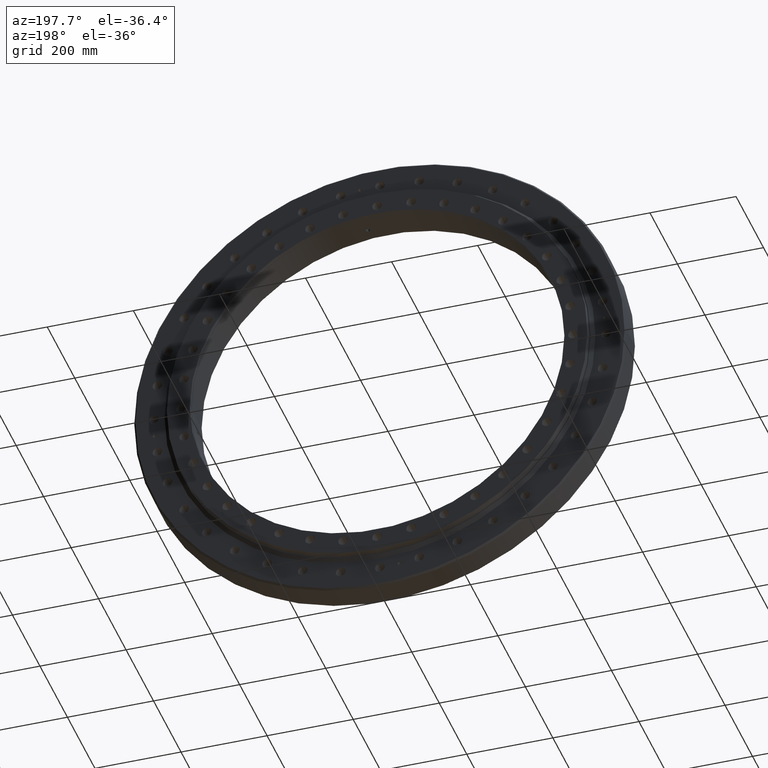
[diagram: clean part render]
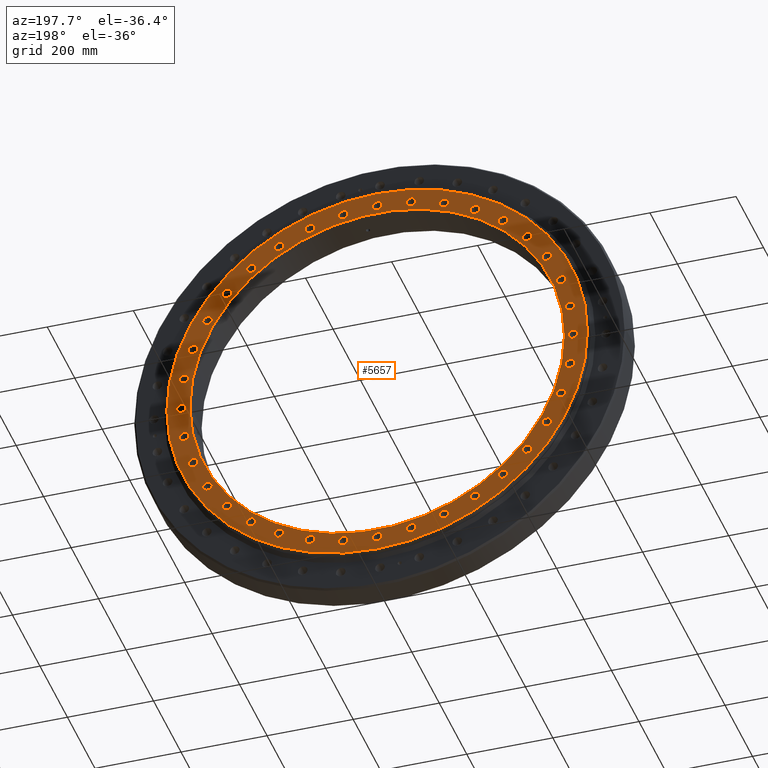
[diagram: same view with one face highlighted and labeled with its STEP entity id]
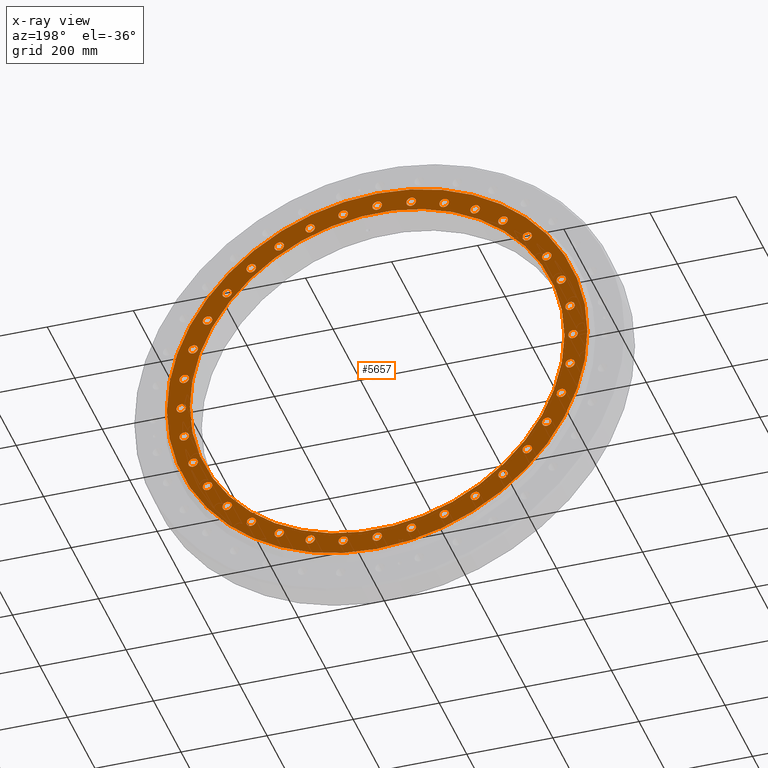
[diagram: x-ray of the same camera — body ghosted, the highlighted face saturated]
A machine part, auxiliary view. The second image highlights one B-rep face of the part: STEP entity #5657.
The next image is the same camera in x-ray: the body ghosted, the highlighted face saturated — about 0% of this face is hidden behind the body in this view.
In plain terms, the highlighted planar face has unit normal (-0, -1, 0).
Its self-contained STEP definition (entity closure, byte-faithful):
#5 = ORIENTED_EDGE ( 'NONE', *, *, #5527, .T. ) ;
#17 = ORIENTED_EDGE ( 'NONE', *, *, #8540, .F. ) ;
#21 = DIRECTION ( 'NONE',  ( -0.1736481776669404900, 0.0000000000000000000, 0.9848077530122062400 ) ) ;
#41 = ORIENTED_EDGE ( 'NONE', *, *, #8654, .F. ) ;
#47 = CIRCLE ( 'NONE', #3770, 11.00000000000001100 ) ;
#79 = CARTESIAN_POINT ( 'NONE',  ( 337.5502216191367800, 52.49999999999997200, 292.4683624073732100 ) ) ;
#80 = CARTESIAN_POINT ( 'NONE',  ( 427.5601424575894500, 52.49999999999997200, 155.6191652131762700 ) ) ;
#87 = DIRECTION ( 'NONE',  ( 2.727064569436389700E-017, 1.000000000000000000, -3.081487911019577400E-033 ) ) ;
#98 = VERTEX_POINT ( 'NONE', #1193 ) ;
#109 = VERTEX_POINT ( 'NONE', #79 ) ;
#112 = DIRECTION ( 'NONE',  ( 0.9848077530122092400, 0.0000000000000000000, -0.1736481776669237300 ) ) ;
#147 = CIRCLE ( 'NONE', #3570, 11.00000000000002700 ) ;
#151 = DIRECTION ( 'NONE',  ( 2.727064569436390300E-017, 1.000000000000000000, -7.703719777548943400E-034 ) ) ;
#156 = EDGE_LOOP ( 'NONE', ( #2122, #3385 ) ) ;
#157 = DIRECTION ( 'NONE',  ( 2.727064569436389400E-017, 1.000000000000000000, 3.081487911019577400E-033 ) ) ;
#163 = CARTESIAN_POINT ( 'NONE',  ( -155.6191652131777800, 52.49999999999998600, 427.5601424575888800 ) ) ;
#174 = VERTEX_POINT ( 'NONE', #7964 ) ;
#175 = CARTESIAN_POINT ( 'NONE',  ( 303.4683624073720700, 52.49999999999997200, -348.5502216191378000 ) ) ;
#200 = CARTESIAN_POINT ( 'NONE',  ( -448.0875276205546200, 52.49999999999999300, 79.00992083845385100 ) ) ;
#201 = AXIS2_PLACEMENT_3D ( 'NONE', #8439, #8329, #6838 ) ;
#216 = CARTESIAN_POINT ( 'NONE',  ( -383.0415587219192200, 52.49999999999999300, 227.5000000000006500 ) ) ;
#219 = DIRECTION ( 'NONE',  ( -1.047444401652938900E-014, 0.0000000000000000000, 1.000000000000000000 ) ) ;
#244 = CARTESIAN_POINT ( 'NONE',  ( 448.0875276205540000, 52.49999999999996400, -79.00992083845696400 ) ) ;
#265 = ORIENTED_EDGE ( 'NONE', *, *, #367, .F. ) ;
#279 = DIRECTION ( 'NONE',  ( 0.8660254037844417100, 0.0000000000000000000, -0.4999999999999947300 ) ) ;
#289 = DIRECTION ( 'NONE',  ( 2.727064569436390000E-017, 1.000000000000000000, -1.540743955509788700E-033 ) ) ;
#301 = CIRCLE ( 'NONE', #7605, 11.00000000000000200 ) ;
#312 = CARTESIAN_POINT ( 'NONE',  ( -4.988015702831472700E-012, 52.49999999999997900, -455.0000000000000000 ) ) ;
#317 = FACE_BOUND ( 'NONE', #7526, .T. ) ;
#323 = VERTEX_POINT ( 'NONE', #2176 ) ;
#339 = CIRCLE ( 'NONE', #6914, 10.99999999999997200 ) ;
#344 = CARTESIAN_POINT ( 'NONE',  ( 438.5601424575894500, 52.49999999999997200, 155.6191652131762700 ) ) ;
#346 = CIRCLE ( 'NONE', #6115, 10.99999999999997900 ) ;
#356 = CIRCLE ( 'NONE', #7090, 11.00000000000002500 ) ;
#367 = EDGE_CURVE ( 'NONE', #5009, #323, #1983, .T. ) ;
#374 = CARTESIAN_POINT ( 'NONE',  ( -166.6191652131843700, 52.49999999999998600, -427.5601424575864900 ) ) ;
#379 = ORIENTED_EDGE ( 'NONE', *, *, #4393, .F. ) ;
#388 = CARTESIAN_POINT ( 'NONE',  ( -394.0415587219225700, 52.49999999999999300, -227.4999999999947700 ) ) ;
#396 = VERTEX_POINT ( 'NONE', #3319 ) ;
#398 = CARTESIAN_POINT ( 'NONE',  ( -437.0875276205546200, 52.49999999999999300, 79.00992083845385100 ) ) ;
#400 = AXIS2_PLACEMENT_3D ( 'NONE', #4468, #4450, #3644 ) ;
#405 = ORIENTED_EDGE ( 'NONE', *, *, #965, .F. ) ;
#410 = ORIENTED_EDGE ( 'NONE', *, *, #3208, .F. ) ;
#416 = DIRECTION ( 'NONE',  ( -0.7660444431189855600, 0.0000000000000000000, 0.6427876096865305900 ) ) ;
#424 = VERTEX_POINT ( 'NONE', #398 ) ;
#437 = EDGE_CURVE ( 'NONE', #1171, #8035, #6865, .T. ) ;
#451 = DIRECTION ( 'NONE',  ( 2.727064569436390300E-017, 1.000000000000000000, -6.162975822039154700E-033 ) ) ;
#459 = ORIENTED_EDGE ( 'NONE', *, *, #2965, .F. ) ;
#462 = CARTESIAN_POINT ( 'NONE',  ( 1.813631102282129000E-012, 52.49999999999997900, 455.0000000000000000 ) ) ;
#470 = ORIENTED_EDGE ( 'NONE', *, *, #500, .F. ) ;
#474 = FACE_BOUND ( 'NONE', #8755, .T. ) ;
#476 = CIRCLE ( 'NONE', #525, 11.00000000000001100 ) ;
#500 = EDGE_CURVE ( 'NONE', #5567, #4987, #2735, .T. ) ;
#525 = AXIS2_PLACEMENT_3D ( 'NONE', #3967, #4111, #1746 ) ;
#533 = CARTESIAN_POINT ( 'NONE',  ( 394.0415587219176200, 52.49999999999997200, -227.5000000000033800 ) ) ;
#542 = DIRECTION ( 'NONE',  ( 2.727064569436390000E-017, 1.000000000000000000, 0.0000000000000000000 ) ) ;
#562 = EDGE_LOOP ( 'NONE', ( #6043, #5802 ) ) ;
#610 = EDGE_CURVE ( 'NONE', #109, #8579, #6314, .T. ) ;
#634 = EDGE_LOOP ( 'NONE', ( #2789, #5 ) ) ;
#637 = CARTESIAN_POINT ( 'NONE',  ( -427.5601424575880900, 52.49999999999999300, 155.6191652131801100 ) ) ;
#644 = DIRECTION ( 'NONE',  ( 2.727064569436389100E-017, 1.000000000000000000, -3.081487911019577400E-033 ) ) ;
#662 = DIRECTION ( 'NONE',  ( 2.727064569436388400E-017, 1.000000000000000000, 9.244463733058732100E-033 ) ) ;
#679 = AXIS2_PLACEMENT_3D ( 'NONE', #878, #3140, #1851 ) ;
#680 = FACE_BOUND ( 'NONE', #8349, .T. ) ;
#695 = AXIS2_PLACEMENT_3D ( 'NONE', #1209, #1966, #4359 ) ;
#696 = DIRECTION ( 'NONE',  ( 0.6427876096865413600, 0.0000000000000000000, -0.7660444431189762400 ) ) ;
#747 = CIRCLE ( 'NONE', #3342, 11.00000000000001100 ) ;
#759 = VERTEX_POINT ( 'NONE', #6528 ) ;
#791 = EDGE_CURVE ( 'NONE', #4987, #5567, #6483, .T. ) ;
#803 = AXIS2_PLACEMENT_3D ( 'NONE', #2775, #5286, #2096 ) ;
#813 = CARTESIAN_POINT ( 'NONE',  ( 238.4999999999961900, 52.49999999999997200, -394.0415587219218900 ) ) ;
#837 = DIRECTION ( 'NONE',  ( 2.727064569436389400E-017, 1.000000000000000000, 0.0000000000000000000 ) ) ;
#878 = CARTESIAN_POINT ( 'NONE',  ( -79.00992083845844100, 52.49999999999998600, -448.0875276205537700 ) ) ;
#886 = ORIENTED_EDGE ( 'NONE', *, *, #5869, .F. ) ;
#917 = DIRECTION ( 'NONE',  ( 2.727064569436390300E-017, 1.000000000000000000, -6.162975822039154700E-033 ) ) ;
#922 = EDGE_CURVE ( 'NONE', #4575, #1556, #47, .T. ) ;
#924 = VERTEX_POINT ( 'NONE', #1524 ) ;
#928 = DIRECTION ( 'NONE',  ( -0.7660444431189855600, 0.0000000000000000000, 0.6427876096865305900 ) ) ;
#938 = CARTESIAN_POINT ( 'NONE',  ( 90.00992083844849400, 52.49999999999997900, -448.0875276205555900 ) ) ;
#943 = DIRECTION ( 'NONE',  ( 0.7660444431189716900, 0.0000000000000000000, 0.6427876096865469100 ) ) ;
#944 = ORIENTED_EDGE ( 'NONE', *, *, #4508, .F. ) ;
#959 = DIRECTION ( 'NONE',  ( 2.727064569436390300E-017, 1.000000000000000000, 0.0000000000000000000 ) ) ;
#964 = CARTESIAN_POINT ( 'NONE',  ( -155.6191652131843700, 52.49999999999998600, -427.5601424575864900 ) ) ;
#965 = EDGE_CURVE ( 'NONE', #1556, #4575, #6813, .T. ) ;
#969 = CARTESIAN_POINT ( 'NONE',  ( 348.5502216191367800, 52.49999999999997200, 292.4683624073732100 ) ) ;
#977 = EDGE_CURVE ( 'NONE', #924, #8545, #1401, .T. ) ;
#987 = CARTESIAN_POINT ( 'NONE',  ( -348.5502216191343900, 52.49999999999999300, 292.4683624073762800 ) ) ;
#989 = AXIS2_PLACEMENT_3D ( 'NONE', #312, #157, #3686 ) ;
#999 = AXIS2_PLACEMENT_3D ( 'NONE', #637, #3450, #1221 ) ;
#1003 = DIRECTION ( 'NONE',  ( -0.8660254037844382600, 0.0000000000000000000, -0.5000000000000007800 ) ) ;
#1005 = DIRECTION ( 'NONE',  ( -0.9848077530122103500, 0.0000000000000000000, 0.1736481776669176200 ) ) ;
#1026 = VERTEX_POINT ( 'NONE', #374 ) ;
#1028 = VERTEX_POINT ( 'NONE', #3204 ) ;
#1034 = VERTEX_POINT ( 'NONE', #6000 ) ;
#1037 = CARTESIAN_POINT ( 'NONE',  ( -90.00992083845142100, 52.49999999999998600, 448.0875276205550200 ) ) ;
#1046 = FACE_BOUND ( 'NONE', #3110, .T. ) ;
#1050 = CARTESIAN_POINT ( 'NONE',  ( -438.5601424575881400, 52.49999999999999300, 155.6191652131801100 ) ) ;
#1051 = ORIENTED_EDGE ( 'NONE', *, *, #3626, .F. ) ;
#1070 = DIRECTION ( 'NONE',  ( 2.727064569436389700E-017, 1.000000000000000000, 3.081487911019577400E-033 ) ) ;
#1073 = EDGE_CURVE ( 'NONE', #6445, #3034, #147, .T. ) ;
#1123 = CARTESIAN_POINT ( 'NONE',  ( -383.0415587219225700, 52.49999999999999300, -227.4999999999947700 ) ) ;
#1129 = EDGE_CURVE ( 'NONE', #323, #5009, #6996, .T. ) ;
#1140 = CARTESIAN_POINT ( 'NONE',  ( 466.0000000000000000, 52.49999999999996400, -3.399476291077739000E-012 ) ) ;
#1152 = EDGE_CURVE ( 'NONE', #2077, #6987, #747, .T. ) ;
#1171 = VERTEX_POINT ( 'NONE', #4874 ) ;
#1172 = CARTESIAN_POINT ( 'NONE',  ( -394.0415587219225700, 52.49999999999999300, -227.4999999999947700 ) ) ;
#1180 = DIRECTION ( 'NONE',  ( 2.727064569436389700E-017, 1.000000000000000000, 1.540743955509788700E-033 ) ) ;
#1181 = DIRECTION ( 'NONE',  ( -0.8660254037844382600, 0.0000000000000000000, -0.5000000000000007800 ) ) ;
#1188 = CARTESIAN_POINT ( 'NONE',  ( -427.5601424575880900, 52.49999999999999300, 155.6191652131801100 ) ) ;
#1193 = CARTESIAN_POINT ( 'NONE',  ( -416.5601424575880900, 52.49999999999999300, 155.6191652131801100 ) ) ;
#1198 = CIRCLE ( 'NONE', #2822, 10.99999999999997200 ) ;
#1209 = CARTESIAN_POINT ( 'NONE',  ( 427.5601424575871800, 52.49999999999997200, -155.6191652131829200 ) ) ;
#1216 = CARTESIAN_POINT ( 'NONE',  ( 68.00992083844850800, 52.49999999999997900, -448.0875276205555900 ) ) ;
#1221 = DIRECTION ( 'NONE',  ( -0.9396926207859125400, 0.0000000000000000000, 0.3420201433256571100 ) ) ;
#1258 = VERTEX_POINT ( 'NONE', #4048 ) ;
#1263 = CARTESIAN_POINT ( 'NONE',  ( 144.6191652131815600, 52.49999999999997900, 427.5601424575875200 ) ) ;
#1264 = VERTEX_POINT ( 'NONE', #4162 ) ;
#1265 = CARTESIAN_POINT ( 'NONE',  ( 444.0000000000000000, 52.49999999999996400, -3.400823402556801100E-012 ) ) ;
#1312 = AXIS2_PLACEMENT_3D ( 'NONE', #4598, #4597, #4574 ) ;
#1321 = CIRCLE ( 'NONE', #400, 11.00000000000000000 ) ;
#1323 = CARTESIAN_POINT ( 'NONE',  ( 155.6191652131748800, 52.49999999999997900, -427.5601424575899600 ) ) ;
#1326 = DIRECTION ( 'NONE',  ( 2.727064569436389700E-017, 1.000000000000000000, -3.081487911019577400E-033 ) ) ;
#1328 = EDGE_LOOP ( 'NONE', ( #7804, #3054 ) ) ;
#1335 = ORIENTED_EDGE ( 'NONE', *, *, #1152, .F. ) ;
#1358 = DIRECTION ( 'NONE',  ( -1.047444401652938900E-014, 0.0000000000000000000, 1.000000000000000000 ) ) ;
#1367 = DIRECTION ( 'NONE',  ( 0.4999999999999928900, 0.0000000000000000000, 0.8660254037844428200 ) ) ;
#1374 = AXIS2_PLACEMENT_3D ( 'NONE', #2847, #3011, #1367 ) ;
#1375 = CARTESIAN_POINT ( 'NONE',  ( 238.5000000000020500, 52.49999999999997200, 394.0415587219184200 ) ) ;
#1377 = AXIS2_PLACEMENT_3D ( 'NONE', #4391, #2600, #2591 ) ;
#1401 = CIRCLE ( 'NONE', #3685, 10.99999999999998600 ) ;
#1408 = CARTESIAN_POINT ( 'NONE',  ( 1.813631102282129000E-012, 52.49999999999997900, 455.0000000000000000 ) ) ;
#1418 = DIRECTION ( 'NONE',  ( 2.727064569436389700E-017, 1.000000000000000000, 0.0000000000000000000 ) ) ;
#1451 = DIRECTION ( 'NONE',  ( 1.000000000000000000, -3.190296047773438100E-017, 0.0000000000000000000 ) ) ;
#1460 = ORIENTED_EDGE ( 'NONE', *, *, #2140, .F. ) ;
#1483 = VERTEX_POINT ( 'NONE', #4817 ) ;
#1486 = CARTESIAN_POINT ( 'NONE',  ( -79.00992083845143600, 52.49999999999998600, 448.0875276205550200 ) ) ;
#1520 = AXIS2_PLACEMENT_3D ( 'NONE', #6287, #6225, #6177 ) ;
#1524 = CARTESIAN_POINT ( 'NONE',  ( 416.5601424575894500, 52.49999999999997200, 155.6191652131762700 ) ) ;
#1536 = AXIS2_PLACEMENT_3D ( 'NONE', #964, #1927, #1984 ) ;
#1543 = DIRECTION ( 'NONE',  ( 2.727064569436389400E-017, 1.000000000000000000, 3.081487911019577400E-033 ) ) ;
#1549 = VERTEX_POINT ( 'NONE', #4903 ) ;
#1556 = VERTEX_POINT ( 'NONE', #2390 ) ;
#1557 = AXIS2_PLACEMENT_3D ( 'NONE', #6486, #6472, #6462 ) ;
#1588 = CARTESIAN_POINT ( 'NONE',  ( -448.0875276205558200, 52.49999999999999300, -79.00992083844700200 ) ) ;
#1600 = EDGE_CURVE ( 'NONE', #2948, #7555, #2265, .T. ) ;
#1614 = VERTEX_POINT ( 'NONE', #6313 ) ;
#1656 = CARTESIAN_POINT ( 'NONE',  ( 348.5502216191322900, 52.49999999999997200, -292.4683624073786600 ) ) ;
#1672 = CARTESIAN_POINT ( 'NONE',  ( -292.4683624073798600, 52.49999999999998600, -348.5502216191313800 ) ) ;
#1683 = CIRCLE ( 'NONE', #8298, 11.00000000000000900 ) ;
#1723 = CIRCLE ( 'NONE', #4674, 11.00000000000000900 ) ;
#1732 = EDGE_CURVE ( 'NONE', #6238, #3281, #4143, .T. ) ;
#1739 = CARTESIAN_POINT ( 'NONE',  ( -435.0000000000000600, 52.49999999999999300, 0.0000000000000000000 ) ) ;
#1746 = DIRECTION ( 'NONE',  ( 1.000000000000000000, 0.0000000000000000000, 6.982962677686258800E-015 ) ) ;
#1819 = AXIS2_PLACEMENT_3D ( 'NONE', #3244, #3214, #4560 ) ;
#1834 = CARTESIAN_POINT ( 'NONE',  ( 79.00992083845540000, 52.49999999999997900, 448.0875276205543400 ) ) ;
#1845 = CARTESIAN_POINT ( 'NONE',  ( 427.5601424575894500, 52.49999999999997200, 155.6191652131762700 ) ) ;
#1851 = DIRECTION ( 'NONE',  ( -0.1736481776669273900, 0.0000000000000000000, -0.9848077530122085800 ) ) ;
#1875 = ORIENTED_EDGE ( 'NONE', *, *, #8536, .F. ) ;
#1878 = DIRECTION ( 'NONE',  ( 2.727064569436389400E-017, 1.000000000000000000, -3.081487911019577400E-033 ) ) ;
#1886 = DIRECTION ( 'NONE',  ( -0.5000000000000105500, 0.0000000000000000000, 0.8660254037844326000 ) ) ;
#1905 = CARTESIAN_POINT ( 'NONE',  ( 292.4683624073720700, 52.49999999999997200, -348.5502216191378000 ) ) ;
#1908 = EDGE_LOOP ( 'NONE', ( #7110, #5986 ) ) ;
#1927 = DIRECTION ( 'NONE',  ( 2.727064569436389400E-017, 1.000000000000000000, 3.081487911019577400E-033 ) ) ;
#1931 = DIRECTION ( 'NONE',  ( 2.727064569436389400E-017, 1.000000000000000000, 3.081487911019577400E-033 ) ) ;
#1943 = DIRECTION ( 'NONE',  ( 0.6427876096865413600, 0.0000000000000000000, -0.7660444431189762400 ) ) ;
#1953 = DIRECTION ( 'NONE',  ( 2.727064569436389700E-017, 1.000000000000000000, 0.0000000000000000000 ) ) ;
#1957 = CARTESIAN_POINT ( 'NONE',  ( 155.6191652131748800, 52.49999999999997900, -427.5601424575899600 ) ) ;
#1966 = DIRECTION ( 'NONE',  ( 2.727064569436388400E-017, 1.000000000000000000, 1.540743955509788700E-033 ) ) ;
#1967 = FACE_BOUND ( 'NONE', #8347, .T. ) ;
#1983 = CIRCLE ( 'NONE', #4655, 10.99999999999998000 ) ;
#1984 = DIRECTION ( 'NONE',  ( -0.3420201433256654400, 0.0000000000000000000, -0.9396926207859095400 ) ) ;
#1995 = EDGE_CURVE ( 'NONE', #7841, #8257, #4704, .T. ) ;
#2029 = ORIENTED_EDGE ( 'NONE', *, *, #7761, .F. ) ;
#2058 = ORIENTED_EDGE ( 'NONE', *, *, #2977, .F. ) ;
#2067 = AXIS2_PLACEMENT_3D ( 'NONE', #969, #959, #943 ) ;
#2077 = VERTEX_POINT ( 'NONE', #7238 ) ;
#2080 = AXIS2_PLACEMENT_3D ( 'NONE', #388, #2635, #1003 ) ;
#2092 = AXIS2_PLACEMENT_3D ( 'NONE', #1845, #1418, #2871 ) ;
#2096 = DIRECTION ( 'NONE',  ( -0.9396926207859079800, 0.0000000000000000000, -0.3420201433256698800 ) ) ;
#2102 = EDGE_CURVE ( 'NONE', #2879, #8260, #4794, .T. ) ;
#2106 = AXIS2_PLACEMENT_3D ( 'NONE', #1323, #2339, #8026 ) ;
#2122 = ORIENTED_EDGE ( 'NONE', *, *, #2209, .F. ) ;
#2132 = EDGE_CURVE ( 'NONE', #3914, #4263, #4905, .T. ) ;
#2135 = AXIS2_PLACEMENT_3D ( 'NONE', #8048, #2438, #2793 ) ;
#2139 = DIRECTION ( 'NONE',  ( 2.727064569436389700E-017, 1.000000000000000000, -1.540743955509788700E-033 ) ) ;
#2140 = EDGE_CURVE ( 'NONE', #8545, #924, #4947, .T. ) ;
#2146 = EDGE_CURVE ( 'NONE', #8943, #3857, #4952, .T. ) ;
#2148 = CARTESIAN_POINT ( 'NONE',  ( 292.4683624073774700, 52.49999999999997200, 348.5502216191333100 ) ) ;
#2159 = EDGE_CURVE ( 'NONE', #8579, #109, #5070, .T. ) ;
#2160 = DIRECTION ( 'NONE',  ( 2.727064569436390300E-017, 1.000000000000000000, 6.162975822039154700E-033 ) ) ;
#2169 = DIRECTION ( 'NONE',  ( 0.1736481776669212800, 0.0000000000000000000, 0.9848077530122096900 ) ) ;
#2176 = CARTESIAN_POINT ( 'NONE',  ( 166.6191652131815600, 52.49999999999997900, 427.5601424575875200 ) ) ;
#2209 = EDGE_CURVE ( 'NONE', #5924, #3752, #5159, .T. ) ;
#2217 = CIRCLE ( 'NONE', #803, 11.00000000000001800 ) ;
#2219 = CARTESIAN_POINT ( 'NONE',  ( -337.5502216191388800, 52.49999999999999300, -292.4683624073708800 ) ) ;
#2225 = ORIENTED_EDGE ( 'NONE', *, *, #4932, .T. ) ;
#2233 = CARTESIAN_POINT ( 'NONE',  ( 437.0875276205540000, 52.49999999999996400, -79.00992083845696400 ) ) ;
#2247 = FACE_BOUND ( 'NONE', #7554, .T. ) ;
#2265 = CIRCLE ( 'NONE', #2664, 11.00000000000000200 ) ;
#2269 = AXIS2_PLACEMENT_3D ( 'NONE', #8719, #8725, #7273 ) ;
#2274 = DIRECTION ( 'NONE',  ( 2.727064569436389700E-017, 1.000000000000000000, 7.703719777548943400E-034 ) ) ;
#2314 = DIRECTION ( 'NONE',  ( 0.9848077530122066900, 0.0000000000000000000, 0.1736481776669380500 ) ) ;
#2336 = CARTESIAN_POINT ( 'NONE',  ( 281.4683624073774100, 52.49999999999997200, 348.5502216191333100 ) ) ;
#2339 = DIRECTION ( 'NONE',  ( 2.727064569436389100E-017, 1.000000000000000000, 3.081487911019577400E-033 ) ) ;
#2351 = CARTESIAN_POINT ( 'NONE',  ( -348.5502216191343900, 52.49999999999999300, 292.4683624073762800 ) ) ;
#2354 = CARTESIAN_POINT ( 'NONE',  ( 448.0875276205553600, 52.49999999999996400, 79.00992083845008600 ) ) ;
#2362 = CARTESIAN_POINT ( 'NONE',  ( -303.4683624073798600, 52.49999999999998600, -348.5502216191313800 ) ) ;
#2366 = CARTESIAN_POINT ( 'NONE',  ( -337.5502216191343900, 52.49999999999999300, 292.4683624073762800 ) ) ;
#2390 = CARTESIAN_POINT ( 'NONE',  ( -10.99999999999818800, 52.49999999999997900, 455.0000000000000000 ) ) ;
#2430 = AXIS2_PLACEMENT_3D ( 'NONE', #6321, #662, #8384 ) ;
#2438 = DIRECTION ( 'NONE',  ( 2.727064569436389700E-017, 1.000000000000000000, 1.540743955509788700E-033 ) ) ;
#2447 = ORIENTED_EDGE ( 'NONE', *, *, #4277, .F. ) ;
#2451 = FACE_BOUND ( 'NONE', #7886, .T. ) ;
#2481 = VERTEX_POINT ( 'NONE', #6909 ) ;
#2491 = EDGE_CURVE ( 'NONE', #8758, #4205, #5699, .T. ) ;
#2510 = AXIS2_PLACEMENT_3D ( 'NONE', #2915, #2830, #2840 ) ;
#2522 = EDGE_CURVE ( 'NONE', #7875, #8674, #5952, .T. ) ;
#2534 = AXIS2_PLACEMENT_3D ( 'NONE', #7416, #7440, #7381 ) ;
#2591 = DIRECTION ( 'NONE',  ( 0.9848077530122066900, 0.0000000000000000000, 0.1736481776669380500 ) ) ;
#2600 = DIRECTION ( 'NONE',  ( 2.727064569436388100E-017, 1.000000000000000000, -1.540743955509788700E-033 ) ) ;
#2606 = DIRECTION ( 'NONE',  ( 0.6427876096865329200, 0.0000000000000000000, 0.7660444431189833400 ) ) ;
#2634 = CARTESIAN_POINT ( 'NONE',  ( -216.4999999999989200, 52.49999999999998600, 394.0415587219201800 ) ) ;
#2635 = DIRECTION ( 'NONE',  ( 2.727064569436389700E-017, 1.000000000000000000, 1.540743955509788700E-033 ) ) ;
#2643 = FACE_BOUND ( 'NONE', #5958, .T. ) ;
#2661 = FACE_BOUND ( 'NONE', #9068, .T. ) ;
#2664 = AXIS2_PLACEMENT_3D ( 'NONE', #5084, #5110, #5093 ) ;
#2703 = EDGE_CURVE ( 'NONE', #4850, #2746, #6350, .T. ) ;
#2704 = CARTESIAN_POINT ( 'NONE',  ( -227.4999999999989200, 52.49999999999998600, 394.0415587219201800 ) ) ;
#2708 = DIRECTION ( 'NONE',  ( -2.727064569436389700E-017, -1.000000000000000000, 0.0000000000000000000 ) ) ;
#2711 = AXIS2_PLACEMENT_3D ( 'NONE', #7695, #3714, #6007 ) ;
#2730 = VERTEX_POINT ( 'NONE', #4622 ) ;
#2735 = CIRCLE ( 'NONE', #4309, 10.99999999999998000 ) ;
#2746 = VERTEX_POINT ( 'NONE', #3963 ) ;
#2775 = CARTESIAN_POINT ( 'NONE',  ( -427.5601424575904700, 52.49999999999999300, -155.6191652131734000 ) ) ;
#2789 = ORIENTED_EDGE ( 'NONE', *, *, #6584, .T. ) ;
#2793 = DIRECTION ( 'NONE',  ( -0.9396926207859079800, 0.0000000000000000000, -0.3420201433256698800 ) ) ;
#2799 = FACE_BOUND ( 'NONE', #7296, .T. ) ;
#2822 = AXIS2_PLACEMENT_3D ( 'NONE', #3017, #3511, #5778 ) ;
#2829 = DIRECTION ( 'NONE',  ( -0.9848077530122103500, 0.0000000000000000000, 0.1736481776669176200 ) ) ;
#2830 = DIRECTION ( 'NONE',  ( 2.727064569436389100E-017, 1.000000000000000000, -1.540743955509788700E-033 ) ) ;
#2833 = FACE_BOUND ( 'NONE', #1908, .T. ) ;
#2837 = ORIENTED_EDGE ( 'NONE', *, *, #2491, .F. ) ;
#2840 = DIRECTION ( 'NONE',  ( 0.8660254037844337100, 0.0000000000000000000, 0.5000000000000086600 ) ) ;
#2847 = CARTESIAN_POINT ( 'NONE',  ( 227.5000000000020500, 52.49999999999997200, 394.0415587219184200 ) ) ;
#2871 = DIRECTION ( 'NONE',  ( 0.9396926207859057600, 0.0000000000000000000, 0.3420201433256759800 ) ) ;
#2879 = VERTEX_POINT ( 'NONE', #6580 ) ;
#2911 = ORIENTED_EDGE ( 'NONE', *, *, #8787, .F. ) ;
#2915 = CARTESIAN_POINT ( 'NONE',  ( 394.0415587219210400, 52.49999999999997200, 227.4999999999975300 ) ) ;
#2930 = EDGE_CURVE ( 'NONE', #6228, #7692, #6888, .T. ) ;
#2935 = FACE_BOUND ( 'NONE', #4789, .T. ) ;
#2948 = VERTEX_POINT ( 'NONE', #7058 ) ;
#2949 = FACE_BOUND ( 'NONE', #7777, .T. ) ;
#2965 = EDGE_CURVE ( 'NONE', #5713, #4548, #7127, .T. ) ;
#2974 = CIRCLE ( 'NONE', #2711, 488.5000000000000000 ) ;
#2977 = EDGE_CURVE ( 'NONE', #3857, #8943, #7371, .T. ) ;
#3011 = DIRECTION ( 'NONE',  ( 2.727064569436389100E-017, 1.000000000000000000, -3.081487911019577400E-033 ) ) ;
#3017 = CARTESIAN_POINT ( 'NONE',  ( -292.4683624073798600, 52.49999999999998600, -348.5502216191313800 ) ) ;
#3030 = EDGE_CURVE ( 'NONE', #4159, #174, #7228, .T. ) ;
#3034 = VERTEX_POINT ( 'NONE', #1216 ) ;
#3035 = CIRCLE ( 'NONE', #3667, 10.99999999999998000 ) ;
#3046 = FACE_BOUND ( 'NONE', #7658, .T. ) ;
#3048 = ORIENTED_EDGE ( 'NONE', *, *, #4659, .F. ) ;
#3054 = ORIENTED_EDGE ( 'NONE', *, *, #2703, .F. ) ;
#3068 = EDGE_CURVE ( 'NONE', #4548, #5713, #7669, .T. ) ;
#3089 = CARTESIAN_POINT ( 'NONE',  ( -455.0000000000000000, 52.49999999999999300, 6.578071420904052500E-012 ) ) ;
#3110 = EDGE_LOOP ( 'NONE', ( #3233, #3048 ) ) ;
#3119 = EDGE_LOOP ( 'NONE', ( #4469, #8917 ) ) ;
#3128 = FACE_BOUND ( 'NONE', #7572, .T. ) ;
#3140 = DIRECTION ( 'NONE',  ( 2.727064569436389400E-017, 1.000000000000000000, 3.081487911019577400E-033 ) ) ;
#3157 = DIRECTION ( 'NONE',  ( -0.4999999999999987800, 0.0000000000000000000, -0.8660254037844393700 ) ) ;
#3168 = AXIS2_PLACEMENT_3D ( 'NONE', #1834, #1878, #2169 ) ;
#3175 = EDGE_CURVE ( 'NONE', #5514, #1034, #7779, .T. ) ;
#3204 = CARTESIAN_POINT ( 'NONE',  ( -90.00992083845844100, 52.49999999999998600, -448.0875276205537700 ) ) ;
#3208 = EDGE_CURVE ( 'NONE', #1614, #8421, #7957, .T. ) ;
#3210 = ORIENTED_EDGE ( 'NONE', *, *, #5759, .F. ) ;
#3214 = DIRECTION ( 'NONE',  ( 2.727064569436390000E-017, 1.000000000000000000, -1.540743955509788700E-033 ) ) ;
#3227 = AXIS2_PLACEMENT_3D ( 'NONE', #5943, #6419, #6166 ) ;
#3233 = ORIENTED_EDGE ( 'NONE', *, *, #3175, .F. ) ;
#3234 = CARTESIAN_POINT ( 'NONE',  ( -227.5000000000047700, 52.49999999999998600, -394.0415587219168900 ) ) ;
#3244 = CARTESIAN_POINT ( 'NONE',  ( 394.0415587219176200, 52.49999999999997200, -227.5000000000033800 ) ) ;
#3264 = EDGE_CURVE ( 'NONE', #3752, #5924, #7976, .T. ) ;
#3281 = VERTEX_POINT ( 'NONE', #6978 ) ;
#3299 = CIRCLE ( 'NONE', #999, 11.00000000000002500 ) ;
#3303 = DIRECTION ( 'NONE',  ( -2.727064569436389700E-017, -1.000000000000000000, 0.0000000000000000000 ) ) ;
#3314 = EDGE_CURVE ( 'NONE', #8659, #7631, #8361, .T. ) ;
#3319 = CARTESIAN_POINT ( 'NONE',  ( 416.5601424575871800, 52.49999999999997200, -155.6191652131829200 ) ) ;
#3327 = CIRCLE ( 'NONE', #989, 11.00000000000001100 ) ;
#3342 = AXIS2_PLACEMENT_3D ( 'NONE', #4509, #4514, #4521 ) ;
#3363 = VERTEX_POINT ( 'NONE', #2634 ) ;
#3372 = CARTESIAN_POINT ( 'NONE',  ( 144.6191652131748500, 52.49999999999997900, -427.5601424575899600 ) ) ;
#3378 = CARTESIAN_POINT ( 'NONE',  ( 435.0000000000000600, 52.49999999999996400, 5.327213576290987100E-014 ) ) ;
#3385 = ORIENTED_EDGE ( 'NONE', *, *, #3264, .F. ) ;
#3398 = CIRCLE ( 'NONE', #3168, 11.00000000000000200 ) ;
#3408 = CARTESIAN_POINT ( 'NONE',  ( -405.0415587219226300, 52.49999999999999300, -227.4999999999947700 ) ) ;
#3424 = CARTESIAN_POINT ( 'NONE',  ( 227.4999999999961900, 52.49999999999997200, -394.0415587219218900 ) ) ;
#3426 = EDGE_CURVE ( 'NONE', #2746, #4850, #8468, .T. ) ;
#3443 = AXIS2_PLACEMENT_3D ( 'NONE', #4856, #4899, #4887 ) ;
#3450 = DIRECTION ( 'NONE',  ( 2.727064569436390300E-017, 1.000000000000000000, -1.540743955509788700E-033 ) ) ;
#3458 = ORIENTED_EDGE ( 'NONE', *, *, #6469, .F. ) ;
#3465 = CARTESIAN_POINT ( 'NONE',  ( -394.0415587219192200, 52.49999999999999300, 227.5000000000006500 ) ) ;
#3474 = EDGE_CURVE ( 'NONE', #759, #1026, #8773, .T. ) ;
#3490 = FACE_OUTER_BOUND ( 'NONE', #634, .T. ) ;
#3496 = DIRECTION ( 'NONE',  ( 2.727064569436389100E-017, 1.000000000000000000, -3.081487911019577400E-033 ) ) ;
#3508 = DIRECTION ( 'NONE',  ( 2.727064569436389400E-017, 1.000000000000000000, -3.081487911019577400E-033 ) ) ;
#3511 = DIRECTION ( 'NONE',  ( 2.727064569436389700E-017, 1.000000000000000000, 3.081487911019577400E-033 ) ) ;
#3565 = EDGE_CURVE ( 'NONE', #4263, #3914, #4820, .T. ) ;
#3570 = AXIS2_PLACEMENT_3D ( 'NONE', #5963, #5729, #5949 ) ;
#3571 = DIRECTION ( 'NONE',  ( 0.7660444431189809000, 0.0000000000000000000, -0.6427876096865358100 ) ) ;
#3626 = EDGE_CURVE ( 'NONE', #424, #1258, #4275, .T. ) ;
#3644 = DIRECTION ( 'NONE',  ( -0.5000000000000105500, 0.0000000000000000000, 0.8660254037844326000 ) ) ;
#3651 = ORIENTED_EDGE ( 'NONE', *, *, #3314, .F. ) ;
#3656 = EDGE_CURVE ( 'NONE', #1028, #8672, #8067, .T. ) ;
#3667 = AXIS2_PLACEMENT_3D ( 'NONE', #3234, #5964, #3157 ) ;
#3676 = ORIENTED_EDGE ( 'NONE', *, *, #5745, .F. ) ;
#3685 = AXIS2_PLACEMENT_3D ( 'NONE', #80, #9067, #9058 ) ;
#3686 = DIRECTION ( 'NONE',  ( 3.491481338843147200E-015, 0.0000000000000000000, -1.000000000000000000 ) ) ;
#3714 = DIRECTION ( 'NONE',  ( 2.727064569436389700E-017, 1.000000000000000000, 0.0000000000000000000 ) ) ;
#3736 = AXIS2_PLACEMENT_3D ( 'NONE', #462, #87, #219 ) ;
#3752 = VERTEX_POINT ( 'NONE', #5965 ) ;
#3770 = AXIS2_PLACEMENT_3D ( 'NONE', #1408, #1326, #1358 ) ;
#3780 = CARTESIAN_POINT ( 'NONE',  ( -437.0875276205558200, 52.49999999999999300, -79.00992083844700200 ) ) ;
#3788 = CARTESIAN_POINT ( 'NONE',  ( -292.4683624073743400, 52.49999999999998600, 348.5502216191359300 ) ) ;
#3806 = CARTESIAN_POINT ( 'NONE',  ( 90.00992083845540000, 52.49999999999997900, 448.0875276205543400 ) ) ;
#3823 = CARTESIAN_POINT ( 'NONE',  ( -238.4999999999989500, 52.49999999999998600, 394.0415587219201800 ) ) ;
#3833 = ORIENTED_EDGE ( 'NONE', *, *, #6010, .F. ) ;
#3839 = DIRECTION ( 'NONE',  ( 0.9848077530122092400, 0.0000000000000000000, -0.1736481776669237300 ) ) ;
#3856 = CARTESIAN_POINT ( 'NONE',  ( 448.0875276205540000, 52.49999999999996400, -79.00992083845696400 ) ) ;
#3857 = VERTEX_POINT ( 'NONE', #1123 ) ;
#3875 = ORIENTED_EDGE ( 'NONE', *, *, #2930, .F. ) ;
#3891 = AXIS2_PLACEMENT_3D ( 'NONE', #2148, #2160, #2606 ) ;
#3914 = VERTEX_POINT ( 'NONE', #3372 ) ;
#3949 = FACE_BOUND ( 'NONE', #7504, .T. ) ;
#3963 = CARTESIAN_POINT ( 'NONE',  ( -466.0000000000000000, 52.49999999999999300, 6.578071420904052500E-012 ) ) ;
#3967 = CARTESIAN_POINT ( 'NONE',  ( 455.0000000000000000, 52.49999999999996400, -3.400823402556801100E-012 ) ) ;
#3989 = CARTESIAN_POINT ( 'NONE',  ( -68.00992083845844100, 52.49999999999998600, -448.0875276205537700 ) ) ;
#3990 = FACE_BOUND ( 'NONE', #8899, .T. ) ;
#4009 = AXIS2_PLACEMENT_3D ( 'NONE', #6459, #3496, #6401 ) ;
#4010 = DIRECTION ( 'NONE',  ( -0.6427876096865469100, 0.0000000000000000000, 0.7660444431189716900 ) ) ;
#4020 = ORIENTED_EDGE ( 'NONE', *, *, #5560, .F. ) ;
#4021 = VERTEX_POINT ( 'NONE', #5858 ) ;
#4029 = DIRECTION ( 'NONE',  ( -0.8660254037844450400, 0.0000000000000000000, 0.4999999999999891200 ) ) ;
#4048 = CARTESIAN_POINT ( 'NONE',  ( -459.0875276205546800, 52.49999999999999300, 79.00992083845385100 ) ) ;
#4088 = CARTESIAN_POINT ( 'NONE',  ( -444.0000000000000000, 52.49999999999999300, 6.579418532383114700E-012 ) ) ;
#4111 = DIRECTION ( 'NONE',  ( 2.727064569436389100E-017, 1.000000000000000000, -2.189528850507526700E-047 ) ) ;
#4126 = ORIENTED_EDGE ( 'NONE', *, *, #8820, .F. ) ;
#4143 = CIRCLE ( 'NONE', #2510, 10.99999999999998600 ) ;
#4157 = FACE_BOUND ( 'NONE', #6658, .T. ) ;
#4159 = VERTEX_POINT ( 'NONE', #175 ) ;
#4162 = CARTESIAN_POINT ( 'NONE',  ( -281.4683624073743400, 52.49999999999998600, 348.5502216191359300 ) ) ;
#4179 = CARTESIAN_POINT ( 'NONE',  ( -459.0875276205558200, 52.49999999999999300, -79.00992083844700200 ) ) ;
#4188 = ORIENTED_EDGE ( 'NONE', *, *, #8855, .F. ) ;
#4204 = AXIS2_PLACEMENT_3D ( 'NONE', #6989, #6979, #6959 ) ;
#4205 = VERTEX_POINT ( 'NONE', #6359 ) ;
#4249 = DIRECTION ( 'NONE',  ( -0.1736481776669273900, 0.0000000000000000000, -0.9848077530122085800 ) ) ;
#4256 = CARTESIAN_POINT ( 'NONE',  ( 0.0000000000000000000, 52.49999999999997900, 0.0000000000000000000 ) ) ;
#4263 = VERTEX_POINT ( 'NONE', #7753 ) ;
#4275 = CIRCLE ( 'NONE', #7778, 10.99999999999999500 ) ;
#4277 = EDGE_CURVE ( 'NONE', #6033, #98, #356, .T. ) ;
#4302 = AXIS2_PLACEMENT_3D ( 'NONE', #6758, #2708, #6864 ) ;
#4309 = AXIS2_PLACEMENT_3D ( 'NONE', #7946, #5302, #5870 ) ;
#4321 = EDGE_CURVE ( 'NONE', #6603, #4021, #339, .T. ) ;
#4326 = ORIENTED_EDGE ( 'NONE', *, *, #4975, .F. ) ;
#4337 = CARTESIAN_POINT ( 'NONE',  ( -79.00992083845143600, 52.49999999999998600, 448.0875276205550200 ) ) ;
#4338 = CARTESIAN_POINT ( 'NONE',  ( -359.5502216191389400, 52.49999999999999300, -292.4683624073708800 ) ) ;
#4346 = EDGE_LOOP ( 'NONE', ( #3458, #3875 ) ) ;
#4359 = DIRECTION ( 'NONE',  ( 0.9396926207859104300, 0.0000000000000000000, -0.3420201433256632200 ) ) ;
#4374 = ORIENTED_EDGE ( 'NONE', *, *, #977, .F. ) ;
#4380 = DIRECTION ( 'NONE',  ( 2.727064569436389700E-017, 1.000000000000000000, 0.0000000000000000000 ) ) ;
#4391 = CARTESIAN_POINT ( 'NONE',  ( 448.0875276205553600, 52.49999999999996400, 79.00992083845008600 ) ) ;
#4393 = EDGE_CURVE ( 'NONE', #1258, #424, #6463, .T. ) ;
#4450 = DIRECTION ( 'NONE',  ( 2.727064569436389700E-017, 1.000000000000000000, -3.081487911019577400E-033 ) ) ;
#4468 = CARTESIAN_POINT ( 'NONE',  ( -227.4999999999989200, 52.49999999999998600, 394.0415587219201800 ) ) ;
#4469 = ORIENTED_EDGE ( 'NONE', *, *, #610, .F. ) ;
#4479 = DIRECTION ( 'NONE',  ( 2.727064569436389100E-017, 1.000000000000000000, -1.540743955509788700E-033 ) ) ;
#4501 = VERTEX_POINT ( 'NONE', #1140 ) ;
#4508 = EDGE_CURVE ( 'NONE', #8035, #1171, #7470, .T. ) ;
#4509 = CARTESIAN_POINT ( 'NONE',  ( -4.988015702831472700E-012, 52.49999999999997900, -455.0000000000000000 ) ) ;
#4514 = DIRECTION ( 'NONE',  ( 2.727064569436389400E-017, 1.000000000000000000, 3.081487911019577400E-033 ) ) ;
#4521 = DIRECTION ( 'NONE',  ( 3.491481338843147200E-015, 0.0000000000000000000, -1.000000000000000000 ) ) ;
#4529 = CIRCLE ( 'NONE', #8404, 10.99999999999998600 ) ;
#4531 = ORIENTED_EDGE ( 'NONE', *, *, #8934, .F. ) ;
#4534 = AXIS2_PLACEMENT_3D ( 'NONE', #1486, #5195, #21 ) ;
#4535 = CIRCLE ( 'NONE', #5174, 11.00000000000000700 ) ;
#4548 = VERTEX_POINT ( 'NONE', #8501 ) ;
#4560 = DIRECTION ( 'NONE',  ( 0.8660254037844417100, 0.0000000000000000000, -0.4999999999999947300 ) ) ;
#4574 = DIRECTION ( 'NONE',  ( -1.000000000000000000, 0.0000000000000000000, 0.0000000000000000000 ) ) ;
#4575 = VERTEX_POINT ( 'NONE', #7350 ) ;
#4597 = DIRECTION ( 'NONE',  ( 2.727064569436389700E-017, 1.000000000000000000, 0.0000000000000000000 ) ) ;
#4598 = CARTESIAN_POINT ( 'NONE',  ( -455.0000000000000000, 52.49999999999999300, 6.578071420904052500E-012 ) ) ;
#4618 = DIRECTION ( 'NONE',  ( 0.3420201433256609400, 0.0000000000000000000, 0.9396926207859112000 ) ) ;
#4622 = CARTESIAN_POINT ( 'NONE',  ( -144.6191652131777800, 52.49999999999998600, 427.5601424575888800 ) ) ;
#4655 = AXIS2_PLACEMENT_3D ( 'NONE', #8363, #6565, #4618 ) ;
#4659 = EDGE_CURVE ( 'NONE', #1034, #5514, #4535, .T. ) ;
#4674 = AXIS2_PLACEMENT_3D ( 'NONE', #3424, #6889, #8103 ) ;
#4688 = CARTESIAN_POINT ( 'NONE',  ( -488.5000000000000000, 52.49999999999999300, 0.0000000000000000000 ) ) ;
#4704 = CIRCLE ( 'NONE', #2269, 10.99999999999997200 ) ;
#4715 = DIRECTION ( 'NONE',  ( 2.727064569436389100E-017, 1.000000000000000000, 3.081487911019577400E-033 ) ) ;
#4718 = VERTEX_POINT ( 'NONE', #5208 ) ;
#4724 = ORIENTED_EDGE ( 'NONE', *, *, #3068, .F. ) ;
#4733 = DIRECTION ( 'NONE',  ( -0.3420201433256782100, 0.0000000000000000000, 0.9396926207859049900 ) ) ;
#4736 = CARTESIAN_POINT ( 'NONE',  ( 2.277892662534015200E-015, 52.49999999999997900, 0.0000000000000000000 ) ) ;
#4738 = EDGE_CURVE ( 'NONE', #3281, #6238, #4529, .T. ) ;
#4789 = EDGE_LOOP ( 'NONE', ( #5359, #470 ) ) ;
#4794 = CIRCLE ( 'NONE', #2135, 11.00000000000001800 ) ;
#4817 = CARTESIAN_POINT ( 'NONE',  ( 459.0875276205553600, 52.49999999999996400, 79.00992083845008600 ) ) ;
#4820 = CIRCLE ( 'NONE', #7902, 10.99999999999997700 ) ;
#4824 = EDGE_CURVE ( 'NONE', #2481, #2730, #5006, .T. ) ;
#4850 = VERTEX_POINT ( 'NONE', #4088 ) ;
#4856 = CARTESIAN_POINT ( 'NONE',  ( 155.6191652131815600, 52.49999999999997900, 427.5601424575875200 ) ) ;
#4874 = CARTESIAN_POINT ( 'NONE',  ( -68.00992083845143600, 52.49999999999998600, 448.0875276205550200 ) ) ;
#4887 = DIRECTION ( 'NONE',  ( 0.3420201433256609400, 0.0000000000000000000, 0.9396926207859112000 ) ) ;
#4899 = DIRECTION ( 'NONE',  ( 2.727064569436389100E-017, 1.000000000000000000, -3.081487911019577400E-033 ) ) ;
#4900 = CARTESIAN_POINT ( 'NONE',  ( 292.4683624073720700, 52.49999999999997200, -348.5502216191378000 ) ) ;
#4903 = CARTESIAN_POINT ( 'NONE',  ( 437.0875276205553600, 52.49999999999996400, 79.00992083845008600 ) ) ;
#4905 = CIRCLE ( 'NONE', #2106, 10.99999999999997700 ) ;
#4907 = FACE_BOUND ( 'NONE', #9037, .T. ) ;
#4909 = ORIENTED_EDGE ( 'NONE', *, *, #1073, .F. ) ;
#4912 = DIRECTION ( 'NONE',  ( -0.6427876096865384700, 0.0000000000000000000, -0.7660444431189787900 ) ) ;
#4925 = DIRECTION ( 'NONE',  ( -1.000000000000000000, 2.840898220637555000E-017, 0.0000000000000000000 ) ) ;
#4930 = EDGE_CURVE ( 'NONE', #4718, #5436, #7373, .T. ) ;
#4932 = EDGE_CURVE ( 'NONE', #8674, #7875, #7164, .T. ) ;
#4941 = DIRECTION ( 'NONE',  ( 2.727064569436388100E-017, 1.000000000000000000, -1.540743955509788700E-033 ) ) ;
#4947 = CIRCLE ( 'NONE', #2092, 10.99999999999998600 ) ;
#4952 = CIRCLE ( 'NONE', #2080, 10.99999999999999500 ) ;
#4975 = EDGE_CURVE ( 'NONE', #8421, #1614, #5902, .T. ) ;
#4979 = DIRECTION ( 'NONE',  ( 2.727064569436390000E-017, 1.000000000000000000, 3.081487911019577400E-033 ) ) ;
#4987 = VERTEX_POINT ( 'NONE', #2336 ) ;
#4991 = AXIS2_PLACEMENT_3D ( 'NONE', #2351, #451, #416 ) ;
#4994 = FACE_BOUND ( 'NONE', #7369, .T. ) ;
#5006 = CIRCLE ( 'NONE', #4009, 10.99999999999999500 ) ;
#5009 = VERTEX_POINT ( 'NONE', #1263 ) ;
#5010 = CIRCLE ( 'NONE', #6481, 10.99999999999999500 ) ;
#5070 = CIRCLE ( 'NONE', #2067, 11.00000000000000200 ) ;
#5084 = CARTESIAN_POINT ( 'NONE',  ( 79.00992083845540000, 52.49999999999997900, 448.0875276205543400 ) ) ;
#5090 = AXIS2_PLACEMENT_3D ( 'NONE', #8131, #8005, #6285 ) ;
#5093 = DIRECTION ( 'NONE',  ( 0.1736481776669212800, 0.0000000000000000000, 0.9848077530122096900 ) ) ;
#5110 = DIRECTION ( 'NONE',  ( 2.727064569436389400E-017, 1.000000000000000000, -3.081487911019577400E-033 ) ) ;
#5115 = AXIS2_PLACEMENT_3D ( 'NONE', #1172, #1180, #1181 ) ;
#5129 = AXIS2_PLACEMENT_3D ( 'NONE', #1905, #1931, #1943 ) ;
#5132 = VERTEX_POINT ( 'NONE', #7481 ) ;
#5146 = CARTESIAN_POINT ( 'NONE',  ( 405.0415587219210400, 52.49999999999997200, 227.4999999999975300 ) ) ;
#5150 = ORIENTED_EDGE ( 'NONE', *, *, #2132, .F. ) ;
#5159 = CIRCLE ( 'NONE', #1819, 11.00000000000001400 ) ;
#5174 = AXIS2_PLACEMENT_3D ( 'NONE', #3856, #7703, #3839 ) ;
#5195 = DIRECTION ( 'NONE',  ( 2.727064569436389400E-017, 1.000000000000000000, -3.081487911019577400E-033 ) ) ;
#5208 = CARTESIAN_POINT ( 'NONE',  ( 359.5502216191322900, 52.49999999999997200, -292.4683624073786600 ) ) ;
#5215 = FACE_BOUND ( 'NONE', #8707, .T. ) ;
#5233 = FACE_BOUND ( 'NONE', #8180, .T. ) ;
#5286 = DIRECTION ( 'NONE',  ( 2.727064569436389700E-017, 1.000000000000000000, 1.540743955509788700E-033 ) ) ;
#5302 = DIRECTION ( 'NONE',  ( 2.727064569436390300E-017, 1.000000000000000000, 6.162975822039154700E-033 ) ) ;
#5315 = EDGE_CURVE ( 'NONE', #5344, #3363, #7740, .T. ) ;
#5344 = VERTEX_POINT ( 'NONE', #3823 ) ;
#5350 = EDGE_LOOP ( 'NONE', ( #2225, #8272 ) ) ;
#5359 = ORIENTED_EDGE ( 'NONE', *, *, #791, .F. ) ;
#5369 = AXIS2_PLACEMENT_3D ( 'NONE', #987, #917, #928 ) ;
#5385 = CIRCLE ( 'NONE', #8348, 10.99999999999997200 ) ;
#5436 = VERTEX_POINT ( 'NONE', #7217 ) ;
#5439 = DIRECTION ( 'NONE',  ( 2.727064569436389700E-017, 1.000000000000000000, 7.703719777548943400E-034 ) ) ;
#5451 = EDGE_CURVE ( 'NONE', #1264, #8263, #8471, .T. ) ;
#5471 = CIRCLE ( 'NONE', #1377, 10.99999999999997900 ) ;
#5481 = VERTEX_POINT ( 'NONE', #6286 ) ;
#5494 = AXIS2_PLACEMENT_3D ( 'NONE', #5789, #4979, #5585 ) ;
#5514 = VERTEX_POINT ( 'NONE', #2233 ) ;
#5523 = DIRECTION ( 'NONE',  ( 2.727064569436389400E-017, 1.000000000000000000, 3.081487911019577400E-033 ) ) ;
#5527 = EDGE_CURVE ( 'NONE', #5132, #7364, #8890, .T. ) ;
#5560 = EDGE_CURVE ( 'NONE', #174, #4159, #1683, .T. ) ;
#5567 = VERTEX_POINT ( 'NONE', #7764 ) ;
#5579 = ORIENTED_EDGE ( 'NONE', *, *, #6416, .F. ) ;
#5581 = PLANE ( 'NONE',  #4302 ) ;
#5582 = VERTEX_POINT ( 'NONE', #8489 ) ;
#5585 = DIRECTION ( 'NONE',  ( -0.7660444431189762400, 0.0000000000000000000, -0.6427876096865413600 ) ) ;
#5615 = ORIENTED_EDGE ( 'NONE', *, *, #3565, .F. ) ;
#5645 = ORIENTED_EDGE ( 'NONE', *, *, #4321, .F. ) ;
#5657 = ADVANCED_FACE ( 'NONE', ( #2833, #680, #8823, #3949, #474, #2247, #2949, #3128, #8357, #5215, #2799, #3046, #4907, #8004, #2661, #1046, #4994, #317, #4157, #6830, #8179, #2935, #6874, #8034, #8099, #7454, #6851, #3990, #7903, #8637, #2643, #8307, #2451, #5233, #1967, #6326, #8996, #3490 ), #5581, .F. ) ;
#5699 = CIRCLE ( 'NONE', #1557, 10.99999999999998000 ) ;
#5713 = VERTEX_POINT ( 'NONE', #2366 ) ;
#5722 = CARTESIAN_POINT ( 'NONE',  ( -405.0415587219192200, 52.49999999999999300, 227.5000000000006500 ) ) ;
#5729 = DIRECTION ( 'NONE',  ( 2.727064569436389400E-017, 1.000000000000000000, 3.081487911019577400E-033 ) ) ;
#5730 = DIRECTION ( 'NONE',  ( 2.727064569436389700E-017, 1.000000000000000000, 0.0000000000000000000 ) ) ;
#5745 = EDGE_CURVE ( 'NONE', #7555, #2948, #3398, .T. ) ;
#5753 = DIRECTION ( 'NONE',  ( 2.727064569436389700E-017, 1.000000000000000000, 0.0000000000000000000 ) ) ;
#5757 = AXIS2_PLACEMENT_3D ( 'NONE', #1588, #2274, #6608 ) ;
#5759 = EDGE_CURVE ( 'NONE', #4205, #8758, #3035, .T. ) ;
#5778 = DIRECTION ( 'NONE',  ( -0.6427876096865384700, 0.0000000000000000000, -0.7660444431189787900 ) ) ;
#5783 = ORIENTED_EDGE ( 'NONE', *, *, #1995, .F. ) ;
#5789 = CARTESIAN_POINT ( 'NONE',  ( -348.5502216191388800, 52.49999999999999300, -292.4683624073708800 ) ) ;
#5802 = ORIENTED_EDGE ( 'NONE', *, *, #1732, .F. ) ;
#5818 = DIRECTION ( 'NONE',  ( 2.727064569436389100E-017, 1.000000000000000000, -3.081487911019577400E-033 ) ) ;
#5835 = DIRECTION ( 'NONE',  ( 2.727064569436389400E-017, 1.000000000000000000, 3.081487911019577400E-033 ) ) ;
#5851 = DIRECTION ( 'NONE',  ( -0.1736481776669404900, 0.0000000000000000000, 0.9848077530122062400 ) ) ;
#5858 = CARTESIAN_POINT ( 'NONE',  ( -281.4683624073798000, 52.49999999999998600, -348.5502216191313800 ) ) ;
#5861 = DIRECTION ( 'NONE',  ( 0.1736481776669335000, 0.0000000000000000000, -0.9848077530122074700 ) ) ;
#5869 = EDGE_CURVE ( 'NONE', #5481, #8312, #7144, .T. ) ;
#5870 = DIRECTION ( 'NONE',  ( 0.6427876096865329200, 0.0000000000000000000, 0.7660444431189833400 ) ) ;
#5896 = CARTESIAN_POINT ( 'NONE',  ( 359.5502216191367800, 52.49999999999997200, 292.4683624073732100 ) ) ;
#5902 = CIRCLE ( 'NONE', #1374, 11.00000000000000000 ) ;
#5924 = VERTEX_POINT ( 'NONE', #7836 ) ;
#5943 = CARTESIAN_POINT ( 'NONE',  ( 427.5601424575871800, 52.49999999999997200, -155.6191652131829200 ) ) ;
#5949 = DIRECTION ( 'NONE',  ( 0.1736481776669335000, 0.0000000000000000000, -0.9848077530122074700 ) ) ;
#5952 = CIRCLE ( 'NONE', #1520, 435.0000000000000600 ) ;
#5958 = EDGE_LOOP ( 'NONE', ( #4724, #459 ) ) ;
#5963 = CARTESIAN_POINT ( 'NONE',  ( 79.00992083844850800, 52.49999999999997900, -448.0875276205555900 ) ) ;
#5964 = DIRECTION ( 'NONE',  ( 2.727064569436389700E-017, 1.000000000000000000, 3.081487911019577400E-033 ) ) ;
#5965 = CARTESIAN_POINT ( 'NONE',  ( 405.0415587219176800, 52.49999999999997200, -227.5000000000033800 ) ) ;
#5986 = ORIENTED_EDGE ( 'NONE', *, *, #8772, .F. ) ;
#6000 = CARTESIAN_POINT ( 'NONE',  ( 459.0875276205540000, 52.49999999999996400, -79.00992083845696400 ) ) ;
#6002 = DIRECTION ( 'NONE',  ( -0.3420201433256654400, 0.0000000000000000000, -0.9396926207859095400 ) ) ;
#6007 = DIRECTION ( 'NONE',  ( -1.000000000000000000, 2.840898220637555000E-017, 0.0000000000000000000 ) ) ;
#6010 = EDGE_CURVE ( 'NONE', #1483, #1549, #346, .T. ) ;
#6033 = VERTEX_POINT ( 'NONE', #1050 ) ;
#6040 = ORIENTED_EDGE ( 'NONE', *, *, #6681, .F. ) ;
#6043 = ORIENTED_EDGE ( 'NONE', *, *, #4738, .F. ) ;
#6051 = CARTESIAN_POINT ( 'NONE',  ( -416.5601424575904700, 52.49999999999999300, -155.6191652131734000 ) ) ;
#6065 = CARTESIAN_POINT ( 'NONE',  ( -303.4683624073743400, 52.49999999999998600, 348.5502216191359300 ) ) ;
#6115 = AXIS2_PLACEMENT_3D ( 'NONE', #2354, #4941, #2314 ) ;
#6130 = CARTESIAN_POINT ( 'NONE',  ( -448.0875276205558200, 52.49999999999999300, -79.00992083844700200 ) ) ;
#6166 = DIRECTION ( 'NONE',  ( 0.9396926207859104300, 0.0000000000000000000, -0.3420201433256632200 ) ) ;
#6177 = DIRECTION ( 'NONE',  ( 1.000000000000000000, -3.190296047773438100E-017, 0.0000000000000000000 ) ) ;
#6225 = DIRECTION ( 'NONE',  ( -2.727064569436389700E-017, -1.000000000000000000, 0.0000000000000000000 ) ) ;
#6228 = VERTEX_POINT ( 'NONE', #2219 ) ;
#6238 = VERTEX_POINT ( 'NONE', #5146 ) ;
#6257 = ORIENTED_EDGE ( 'NONE', *, *, #8625, .F. ) ;
#6267 = EDGE_CURVE ( 'NONE', #4021, #6603, #1198, .T. ) ;
#6285 = DIRECTION ( 'NONE',  ( 0.7660444431189809000, 0.0000000000000000000, -0.6427876096865358100 ) ) ;
#6286 = CARTESIAN_POINT ( 'NONE',  ( 216.4999999999961600, 52.49999999999997200, -394.0415587219218900 ) ) ;
#6287 = CARTESIAN_POINT ( 'NONE',  ( 0.0000000000000000000, 52.49999999999997900, 0.0000000000000000000 ) ) ;
#6313 = CARTESIAN_POINT ( 'NONE',  ( 216.5000000000020200, 52.49999999999997200, 394.0415587219184200 ) ) ;
#6314 = CIRCLE ( 'NONE', #4204, 11.00000000000000200 ) ;
#6321 = CARTESIAN_POINT ( 'NONE',  ( 227.4999999999961900, 52.49999999999997200, -394.0415587219218900 ) ) ;
#6326 = FACE_BOUND ( 'NONE', #1328, .T. ) ;
#6350 = CIRCLE ( 'NONE', #1312, 11.00000000000001100 ) ;
#6359 = CARTESIAN_POINT ( 'NONE',  ( -238.5000000000048000, 52.49999999999998600, -394.0415587219168900 ) ) ;
#6401 = DIRECTION ( 'NONE',  ( -0.3420201433256782100, 0.0000000000000000000, 0.9396926207859049900 ) ) ;
#6416 = EDGE_CURVE ( 'NONE', #1026, #759, #7962, .T. ) ;
#6419 = DIRECTION ( 'NONE',  ( 2.727064569436388400E-017, 1.000000000000000000, 1.540743955509788700E-033 ) ) ;
#6429 = CARTESIAN_POINT ( 'NONE',  ( 79.00992083844850800, 52.49999999999997900, -448.0875276205555900 ) ) ;
#6445 = VERTEX_POINT ( 'NONE', #938 ) ;
#6459 = CARTESIAN_POINT ( 'NONE',  ( -155.6191652131777800, 52.49999999999998600, 427.5601424575888800 ) ) ;
#6462 = DIRECTION ( 'NONE',  ( -0.4999999999999987800, 0.0000000000000000000, -0.8660254037844393700 ) ) ;
#6463 = CIRCLE ( 'NONE', #6873, 10.99999999999999500 ) ;
#6469 = EDGE_CURVE ( 'NONE', #7692, #6228, #7632, .T. ) ;
#6472 = DIRECTION ( 'NONE',  ( 2.727064569436389700E-017, 1.000000000000000000, 3.081487911019577400E-033 ) ) ;
#6474 = ORIENTED_EDGE ( 'NONE', *, *, #8639, .F. ) ;
#6481 = AXIS2_PLACEMENT_3D ( 'NONE', #163, #644, #4733 ) ;
#6483 = CIRCLE ( 'NONE', #3891, 10.99999999999998000 ) ;
#6486 = CARTESIAN_POINT ( 'NONE',  ( -227.5000000000047700, 52.49999999999998600, -394.0415587219168900 ) ) ;
#6491 = AXIS2_PLACEMENT_3D ( 'NONE', #4256, #3303, #1451 ) ;
#6523 = CARTESIAN_POINT ( 'NONE',  ( -216.5000000000047700, 52.49999999999998600, -394.0415587219168900 ) ) ;
#6528 = CARTESIAN_POINT ( 'NONE',  ( -144.6191652131843500, 52.49999999999998600, -427.5601424575864900 ) ) ;
#6550 = ORIENTED_EDGE ( 'NONE', *, *, #7601, .F. ) ;
#6565 = DIRECTION ( 'NONE',  ( 2.727064569436389100E-017, 1.000000000000000000, -3.081487911019577400E-033 ) ) ;
#6575 = ORIENTED_EDGE ( 'NONE', *, *, #3656, .F. ) ;
#6580 = CARTESIAN_POINT ( 'NONE',  ( -438.5601424575905300, 52.49999999999999300, -155.6191652131734000 ) ) ;
#6584 = EDGE_CURVE ( 'NONE', #7364, #5132, #2974, .T. ) ;
#6603 = VERTEX_POINT ( 'NONE', #2362 ) ;
#6608 = DIRECTION ( 'NONE',  ( -0.9848077530122081300, 0.0000000000000000000, -0.1736481776669298300 ) ) ;
#6649 = CARTESIAN_POINT ( 'NONE',  ( -11.00000000000498800, 52.49999999999997900, -455.0000000000000000 ) ) ;
#6658 = EDGE_LOOP ( 'NONE', ( #4374, #1460 ) ) ;
#6670 = CARTESIAN_POINT ( 'NONE',  ( -448.0875276205546200, 52.49999999999999300, 79.00992083845385100 ) ) ;
#6681 = EDGE_CURVE ( 'NONE', #5436, #4718, #7224, .T. ) ;
#6744 = AXIS2_PLACEMENT_3D ( 'NONE', #4337, #3508, #5851 ) ;
#6750 = CIRCLE ( 'NONE', #8853, 11.00000000000002700 ) ;
#6758 = CARTESIAN_POINT ( 'NONE',  ( -488.5000000000000000, 52.49999999999999300, 0.0000000000000000000 ) ) ;
#6770 = EDGE_CURVE ( 'NONE', #4501, #7859, #8221, .T. ) ;
#6788 = AXIS2_PLACEMENT_3D ( 'NONE', #1656, #837, #3571 ) ;
#6789 = ORIENTED_EDGE ( 'NONE', *, *, #8423, .F. ) ;
#6813 = CIRCLE ( 'NONE', #3736, 11.00000000000001100 ) ;
#6823 = DIRECTION ( 'NONE',  ( -1.000000000000000000, 0.0000000000000000000, 0.0000000000000000000 ) ) ;
#6830 = FACE_BOUND ( 'NONE', #562, .T. ) ;
#6838 = DIRECTION ( 'NONE',  ( -0.7660444431189762400, 0.0000000000000000000, -0.6427876096865413600 ) ) ;
#6851 = FACE_BOUND ( 'NONE', #8502, .T. ) ;
#6864 = DIRECTION ( 'NONE',  ( 1.000000000000000000, -2.727064569436389700E-017, 0.0000000000000000000 ) ) ;
#6865 = CIRCLE ( 'NONE', #4534, 10.99999999999998400 ) ;
#6871 = CARTESIAN_POINT ( 'NONE',  ( -292.4683624073743400, 52.49999999999998600, 348.5502216191359300 ) ) ;
#6873 = AXIS2_PLACEMENT_3D ( 'NONE', #200, #151, #1005 ) ;
#6874 = FACE_BOUND ( 'NONE', #7544, .T. ) ;
#6887 = ORIENTED_EDGE ( 'NONE', *, *, #3474, .F. ) ;
#6888 = CIRCLE ( 'NONE', #5494, 11.00000000000000900 ) ;
#6889 = DIRECTION ( 'NONE',  ( 2.727064569436388400E-017, 1.000000000000000000, 9.244463733058732100E-033 ) ) ;
#6890 = ORIENTED_EDGE ( 'NONE', *, *, #1129, .F. ) ;
#6909 = CARTESIAN_POINT ( 'NONE',  ( -166.6191652131778100, 52.49999999999998600, 427.5601424575888800 ) ) ;
#6914 = AXIS2_PLACEMENT_3D ( 'NONE', #1672, #1070, #4912 ) ;
#6941 = DIRECTION ( 'NONE',  ( 0.8660254037844337100, 0.0000000000000000000, 0.5000000000000086600 ) ) ;
#6959 = DIRECTION ( 'NONE',  ( 0.7660444431189716900, 0.0000000000000000000, 0.6427876096865469100 ) ) ;
#6978 = CARTESIAN_POINT ( 'NONE',  ( 383.0415587219210400, 52.49999999999997200, 227.4999999999975300 ) ) ;
#6979 = DIRECTION ( 'NONE',  ( 2.727064569436390300E-017, 1.000000000000000000, 0.0000000000000000000 ) ) ;
#6987 = VERTEX_POINT ( 'NONE', #6649 ) ;
#6989 = CARTESIAN_POINT ( 'NONE',  ( 348.5502216191367800, 52.49999999999997200, 292.4683624073732100 ) ) ;
#6996 = CIRCLE ( 'NONE', #3443, 10.99999999999998000 ) ;
#7058 = CARTESIAN_POINT ( 'NONE',  ( 68.00992083845540000, 52.49999999999997900, 448.0875276205543400 ) ) ;
#7090 = AXIS2_PLACEMENT_3D ( 'NONE', #1188, #7708, #7433 ) ;
#7103 = ORIENTED_EDGE ( 'NONE', *, *, #2146, .F. ) ;
#7110 = ORIENTED_EDGE ( 'NONE', *, *, #2102, .F. ) ;
#7126 = DIRECTION ( 'NONE',  ( -0.6427876096865469100, 0.0000000000000000000, 0.7660444431189716900 ) ) ;
#7127 = CIRCLE ( 'NONE', #4991, 11.00000000000002100 ) ;
#7136 = DIRECTION ( 'NONE',  ( -0.9848077530122081300, 0.0000000000000000000, -0.1736481776669298300 ) ) ;
#7141 = CIRCLE ( 'NONE', #695, 10.99999999999998900 ) ;
#7144 = CIRCLE ( 'NONE', #2430, 11.00000000000000900 ) ;
#7164 = CIRCLE ( 'NONE', #6491, 435.0000000000000600 ) ;
#7184 = CARTESIAN_POINT ( 'NONE',  ( -79.00992083845844100, 52.49999999999998600, -448.0875276205537700 ) ) ;
#7217 = CARTESIAN_POINT ( 'NONE',  ( 337.5502216191322900, 52.49999999999997200, -292.4683624073786600 ) ) ;
#7223 = CARTESIAN_POINT ( 'NONE',  ( 394.0415587219210400, 52.49999999999997200, 227.4999999999975300 ) ) ;
#7224 = CIRCLE ( 'NONE', #5090, 11.00000000000001600 ) ;
#7228 = CIRCLE ( 'NONE', #5129, 11.00000000000000900 ) ;
#7238 = CARTESIAN_POINT ( 'NONE',  ( 10.99999999999501400, 52.49999999999997900, -455.0000000000000000 ) ) ;
#7265 = DIRECTION ( 'NONE',  ( 2.727064569436389400E-017, 1.000000000000000000, 3.081487911019577400E-033 ) ) ;
#7273 = DIRECTION ( 'NONE',  ( -0.8660254037844450400, 0.0000000000000000000, 0.4999999999999891200 ) ) ;
#7296 = EDGE_LOOP ( 'NONE', ( #886, #6550 ) ) ;
#7350 = CARTESIAN_POINT ( 'NONE',  ( 11.00000000000181400, 52.49999999999997900, 455.0000000000000000 ) ) ;
#7364 = VERTEX_POINT ( 'NONE', #4688 ) ;
#7369 = EDGE_LOOP ( 'NONE', ( #6474, #7604 ) ) ;
#7371 = CIRCLE ( 'NONE', #5115, 10.99999999999999500 ) ;
#7373 = CIRCLE ( 'NONE', #6788, 11.00000000000001600 ) ;
#7381 = DIRECTION ( 'NONE',  ( 1.000000000000000000, 0.0000000000000000000, 6.982962677686258800E-015 ) ) ;
#7386 = ORIENTED_EDGE ( 'NONE', *, *, #9056, .F. ) ;
#7416 = CARTESIAN_POINT ( 'NONE',  ( 455.0000000000000000, 52.49999999999996400, -3.400823402556801100E-012 ) ) ;
#7423 = EDGE_LOOP ( 'NONE', ( #9060, #3676 ) ) ;
#7424 = AXIS2_PLACEMENT_3D ( 'NONE', #2704, #7447, #1886 ) ;
#7432 = ORIENTED_EDGE ( 'NONE', *, *, #6267, .F. ) ;
#7433 = DIRECTION ( 'NONE',  ( -0.9396926207859125400, 0.0000000000000000000, 0.3420201433256571100 ) ) ;
#7440 = DIRECTION ( 'NONE',  ( 2.727064569436389100E-017, 1.000000000000000000, -2.189528850507526700E-047 ) ) ;
#7444 = CARTESIAN_POINT ( 'NONE',  ( -155.6191652131843700, 52.49999999999998600, -427.5601424575864900 ) ) ;
#7447 = DIRECTION ( 'NONE',  ( 2.727064569436389700E-017, 1.000000000000000000, -3.081487911019577400E-033 ) ) ;
#7454 = FACE_BOUND ( 'NONE', #7465, .T. ) ;
#7465 = EDGE_LOOP ( 'NONE', ( #405, #8403 ) ) ;
#7470 = CIRCLE ( 'NONE', #6744, 10.99999999999998400 ) ;
#7481 = CARTESIAN_POINT ( 'NONE',  ( 488.5000000000000000, 52.49999999999996400, 5.982399613834819600E-014 ) ) ;
#7489 = ORIENTED_EDGE ( 'NONE', *, *, #4930, .F. ) ;
#7504 = EDGE_LOOP ( 'NONE', ( #5645, #7432 ) ) ;
#7526 = EDGE_LOOP ( 'NONE', ( #4126, #3833 ) ) ;
#7537 = EDGE_LOOP ( 'NONE', ( #265, #6890 ) ) ;
#7544 = EDGE_LOOP ( 'NONE', ( #410, #4326 ) ) ;
#7554 = EDGE_LOOP ( 'NONE', ( #5579, #6887 ) ) ;
#7555 = VERTEX_POINT ( 'NONE', #3806 ) ;
#7572 = EDGE_LOOP ( 'NONE', ( #1875, #1335 ) ) ;
#7601 = EDGE_CURVE ( 'NONE', #8312, #5481, #1723, .T. ) ;
#7604 = ORIENTED_EDGE ( 'NONE', *, *, #6770, .F. ) ;
#7605 = AXIS2_PLACEMENT_3D ( 'NONE', #3788, #1953, #7126 ) ;
#7631 = VERTEX_POINT ( 'NONE', #3780 ) ;
#7632 = CIRCLE ( 'NONE', #201, 11.00000000000000900 ) ;
#7658 = EDGE_LOOP ( 'NONE', ( #4020, #8840 ) ) ;
#7669 = CIRCLE ( 'NONE', #5369, 11.00000000000002100 ) ;
#7692 = VERTEX_POINT ( 'NONE', #4338 ) ;
#7695 = CARTESIAN_POINT ( 'NONE',  ( 2.277892662534015200E-015, 52.49999999999997900, 0.0000000000000000000 ) ) ;
#7703 = DIRECTION ( 'NONE',  ( 2.727064569436390000E-017, 1.000000000000000000, 0.0000000000000000000 ) ) ;
#7707 = DIRECTION ( 'NONE',  ( 0.4999999999999928900, 0.0000000000000000000, 0.8660254037844428200 ) ) ;
#7708 = DIRECTION ( 'NONE',  ( 2.727064569436390300E-017, 1.000000000000000000, -1.540743955509788700E-033 ) ) ;
#7740 = CIRCLE ( 'NONE', #7424, 11.00000000000000000 ) ;
#7753 = CARTESIAN_POINT ( 'NONE',  ( 166.6191652131748800, 52.49999999999997900, -427.5601424575899600 ) ) ;
#7761 = EDGE_CURVE ( 'NONE', #2730, #2481, #5010, .T. ) ;
#7764 = CARTESIAN_POINT ( 'NONE',  ( 303.4683624073774700, 52.49999999999997200, 348.5502216191333100 ) ) ;
#7767 = AXIS2_PLACEMENT_3D ( 'NONE', #7184, #7265, #4249 ) ;
#7777 = EDGE_LOOP ( 'NONE', ( #6575, #4531 ) ) ;
#7778 = AXIS2_PLACEMENT_3D ( 'NONE', #6670, #8632, #2829 ) ;
#7779 = CIRCLE ( 'NONE', #9006, 11.00000000000000700 ) ;
#7804 = ORIENTED_EDGE ( 'NONE', *, *, #3426, .F. ) ;
#7836 = CARTESIAN_POINT ( 'NONE',  ( 383.0415587219176200, 52.49999999999997200, -227.5000000000033800 ) ) ;
#7841 = VERTEX_POINT ( 'NONE', #216 ) ;
#7859 = VERTEX_POINT ( 'NONE', #1265 ) ;
#7875 = VERTEX_POINT ( 'NONE', #3378 ) ;
#7886 = EDGE_LOOP ( 'NONE', ( #2447, #17 ) ) ;
#7902 = AXIS2_PLACEMENT_3D ( 'NONE', #1957, #4715, #8651 ) ;
#7903 = FACE_BOUND ( 'NONE', #8425, .T. ) ;
#7922 = AXIS2_PLACEMENT_3D ( 'NONE', #6871, #5730, #4010 ) ;
#7944 = ORIENTED_EDGE ( 'NONE', *, *, #437, .F. ) ;
#7946 = CARTESIAN_POINT ( 'NONE',  ( 292.4683624073774700, 52.49999999999997200, 348.5502216191333100 ) ) ;
#7957 = CIRCLE ( 'NONE', #8885, 11.00000000000000000 ) ;
#7962 = CIRCLE ( 'NONE', #1536, 11.00000000000000000 ) ;
#7964 = CARTESIAN_POINT ( 'NONE',  ( 281.4683624073720700, 52.49999999999997200, -348.5502216191378000 ) ) ;
#7976 = CIRCLE ( 'NONE', #8596, 11.00000000000001400 ) ;
#8004 = FACE_BOUND ( 'NONE', #156, .T. ) ;
#8005 = DIRECTION ( 'NONE',  ( 2.727064569436389400E-017, 1.000000000000000000, 0.0000000000000000000 ) ) ;
#8026 = DIRECTION ( 'NONE',  ( 0.3420201433256737100, 0.0000000000000000000, -0.9396926207859064300 ) ) ;
#8034 = FACE_BOUND ( 'NONE', #7537, .T. ) ;
#8035 = VERTEX_POINT ( 'NONE', #1037 ) ;
#8048 = CARTESIAN_POINT ( 'NONE',  ( -427.5601424575904700, 52.49999999999999300, -155.6191652131734000 ) ) ;
#8067 = CIRCLE ( 'NONE', #7767, 11.00000000000001400 ) ;
#8068 = AXIS2_PLACEMENT_3D ( 'NONE', #7444, #5835, #6002 ) ;
#8096 = EDGE_LOOP ( 'NONE', ( #7386, #8682 ) ) ;
#8099 = FACE_BOUND ( 'NONE', #7423, .T. ) ;
#8103 = DIRECTION ( 'NONE',  ( 0.5000000000000025500, 0.0000000000000000000, -0.8660254037844371500 ) ) ;
#8130 = AXIS2_PLACEMENT_3D ( 'NONE', #4736, #4380, #4925 ) ;
#8131 = CARTESIAN_POINT ( 'NONE',  ( 348.5502216191322900, 52.49999999999997200, -292.4683624073786600 ) ) ;
#8179 = FACE_BOUND ( 'NONE', #3119, .T. ) ;
#8180 = EDGE_LOOP ( 'NONE', ( #379, #1051 ) ) ;
#8192 = AXIS2_PLACEMENT_3D ( 'NONE', #3089, #5753, #6823 ) ;
#8221 = CIRCLE ( 'NONE', #2534, 11.00000000000001100 ) ;
#8257 = VERTEX_POINT ( 'NONE', #5722 ) ;
#8260 = VERTEX_POINT ( 'NONE', #6051 ) ;
#8263 = VERTEX_POINT ( 'NONE', #6065 ) ;
#8272 = ORIENTED_EDGE ( 'NONE', *, *, #2522, .T. ) ;
#8290 = EDGE_CURVE ( 'NONE', #3034, #6445, #6750, .T. ) ;
#8298 = AXIS2_PLACEMENT_3D ( 'NONE', #4900, #1543, #696 ) ;
#8299 = CIRCLE ( 'NONE', #679, 11.00000000000001400 ) ;
#8307 = FACE_BOUND ( 'NONE', #8431, .T. ) ;
#8312 = VERTEX_POINT ( 'NONE', #813 ) ;
#8329 = DIRECTION ( 'NONE',  ( 2.727064569436390000E-017, 1.000000000000000000, 3.081487911019577400E-033 ) ) ;
#8347 = EDGE_LOOP ( 'NONE', ( #3651, #4188 ) ) ;
#8348 = AXIS2_PLACEMENT_3D ( 'NONE', #3465, #2139, #4029 ) ;
#8349 = EDGE_LOOP ( 'NONE', ( #7103, #2058 ) ) ;
#8357 = FACE_BOUND ( 'NONE', #8442, .T. ) ;
#8361 = CIRCLE ( 'NONE', #8497, 11.00000000000002000 ) ;
#8363 = CARTESIAN_POINT ( 'NONE',  ( 155.6191652131815600, 52.49999999999997900, 427.5601424575875200 ) ) ;
#8384 = DIRECTION ( 'NONE',  ( 0.5000000000000025500, 0.0000000000000000000, -0.8660254037844371500 ) ) ;
#8403 = ORIENTED_EDGE ( 'NONE', *, *, #922, .F. ) ;
#8404 = AXIS2_PLACEMENT_3D ( 'NONE', #7223, #4479, #6941 ) ;
#8421 = VERTEX_POINT ( 'NONE', #1375 ) ;
#8423 = EDGE_CURVE ( 'NONE', #8257, #7841, #5385, .T. ) ;
#8425 = EDGE_LOOP ( 'NONE', ( #8789, #6257 ) ) ;
#8431 = EDGE_LOOP ( 'NONE', ( #6789, #5783 ) ) ;
#8439 = CARTESIAN_POINT ( 'NONE',  ( -348.5502216191388800, 52.49999999999999300, -292.4683624073708800 ) ) ;
#8442 = EDGE_LOOP ( 'NONE', ( #8622, #4909 ) ) ;
#8468 = CIRCLE ( 'NONE', #8192, 11.00000000000001100 ) ;
#8471 = CIRCLE ( 'NONE', #7922, 11.00000000000000200 ) ;
#8489 = CARTESIAN_POINT ( 'NONE',  ( 438.5601424575871800, 52.49999999999997200, -155.6191652131829200 ) ) ;
#8497 = AXIS2_PLACEMENT_3D ( 'NONE', #6130, #5439, #7136 ) ;
#8501 = CARTESIAN_POINT ( 'NONE',  ( -359.5502216191343900, 52.49999999999999300, 292.4683624073762800 ) ) ;
#8502 = EDGE_LOOP ( 'NONE', ( #944, #7944 ) ) ;
#8536 = EDGE_CURVE ( 'NONE', #6987, #2077, #3327, .T. ) ;
#8540 = EDGE_CURVE ( 'NONE', #98, #6033, #3299, .T. ) ;
#8545 = VERTEX_POINT ( 'NONE', #344 ) ;
#8579 = VERTEX_POINT ( 'NONE', #5896 ) ;
#8596 = AXIS2_PLACEMENT_3D ( 'NONE', #533, #289, #279 ) ;
#8622 = ORIENTED_EDGE ( 'NONE', *, *, #8290, .F. ) ;
#8625 = EDGE_CURVE ( 'NONE', #3363, #5344, #1321, .T. ) ;
#8632 = DIRECTION ( 'NONE',  ( 2.727064569436390300E-017, 1.000000000000000000, -7.703719777548943400E-034 ) ) ;
#8637 = FACE_BOUND ( 'NONE', #8096, .T. ) ;
#8639 = EDGE_CURVE ( 'NONE', #7859, #4501, #476, .T. ) ;
#8651 = DIRECTION ( 'NONE',  ( 0.3420201433256737100, 0.0000000000000000000, -0.9396926207859064300 ) ) ;
#8654 = EDGE_CURVE ( 'NONE', #5582, #396, #7141, .T. ) ;
#8659 = VERTEX_POINT ( 'NONE', #4179 ) ;
#8672 = VERTEX_POINT ( 'NONE', #3989 ) ;
#8674 = VERTEX_POINT ( 'NONE', #1739 ) ;
#8682 = ORIENTED_EDGE ( 'NONE', *, *, #5451, .F. ) ;
#8707 = EDGE_LOOP ( 'NONE', ( #5150, #5615 ) ) ;
#8718 = CIRCLE ( 'NONE', #3227, 10.99999999999998900 ) ;
#8719 = CARTESIAN_POINT ( 'NONE',  ( -394.0415587219192200, 52.49999999999999300, 227.5000000000006500 ) ) ;
#8725 = DIRECTION ( 'NONE',  ( 2.727064569436389700E-017, 1.000000000000000000, -1.540743955509788700E-033 ) ) ;
#8755 = EDGE_LOOP ( 'NONE', ( #3210, #2837 ) ) ;
#8758 = VERTEX_POINT ( 'NONE', #6523 ) ;
#8772 = EDGE_CURVE ( 'NONE', #8260, #2879, #2217, .T. ) ;
#8773 = CIRCLE ( 'NONE', #8068, 11.00000000000000000 ) ;
#8787 = EDGE_CURVE ( 'NONE', #396, #5582, #8718, .T. ) ;
#8789 = ORIENTED_EDGE ( 'NONE', *, *, #5315, .F. ) ;
#8820 = EDGE_CURVE ( 'NONE', #1549, #1483, #5471, .T. ) ;
#8823 = FACE_BOUND ( 'NONE', #4346, .T. ) ;
#8840 = ORIENTED_EDGE ( 'NONE', *, *, #3030, .F. ) ;
#8853 = AXIS2_PLACEMENT_3D ( 'NONE', #6429, #5523, #5861 ) ;
#8855 = EDGE_CURVE ( 'NONE', #7631, #8659, #8927, .T. ) ;
#8885 = AXIS2_PLACEMENT_3D ( 'NONE', #8958, #5818, #7707 ) ;
#8890 = CIRCLE ( 'NONE', #8130, 488.5000000000000000 ) ;
#8899 = EDGE_LOOP ( 'NONE', ( #9029, #2029 ) ) ;
#8917 = ORIENTED_EDGE ( 'NONE', *, *, #2159, .F. ) ;
#8927 = CIRCLE ( 'NONE', #5757, 11.00000000000002000 ) ;
#8934 = EDGE_CURVE ( 'NONE', #8672, #1028, #8299, .T. ) ;
#8943 = VERTEX_POINT ( 'NONE', #3408 ) ;
#8958 = CARTESIAN_POINT ( 'NONE',  ( 227.5000000000020500, 52.49999999999997200, 394.0415587219184200 ) ) ;
#8996 = FACE_BOUND ( 'NONE', #5350, .T. ) ;
#9006 = AXIS2_PLACEMENT_3D ( 'NONE', #244, #542, #112 ) ;
#9029 = ORIENTED_EDGE ( 'NONE', *, *, #4824, .F. ) ;
#9037 = EDGE_LOOP ( 'NONE', ( #6040, #7489 ) ) ;
#9056 = EDGE_CURVE ( 'NONE', #8263, #1264, #301, .T. ) ;
#9058 = DIRECTION ( 'NONE',  ( 0.9396926207859057600, 0.0000000000000000000, 0.3420201433256759800 ) ) ;
#9060 = ORIENTED_EDGE ( 'NONE', *, *, #1600, .F. ) ;
#9067 = DIRECTION ( 'NONE',  ( 2.727064569436389700E-017, 1.000000000000000000, 0.0000000000000000000 ) ) ;
#9068 = EDGE_LOOP ( 'NONE', ( #2911, #41 ) ) ;